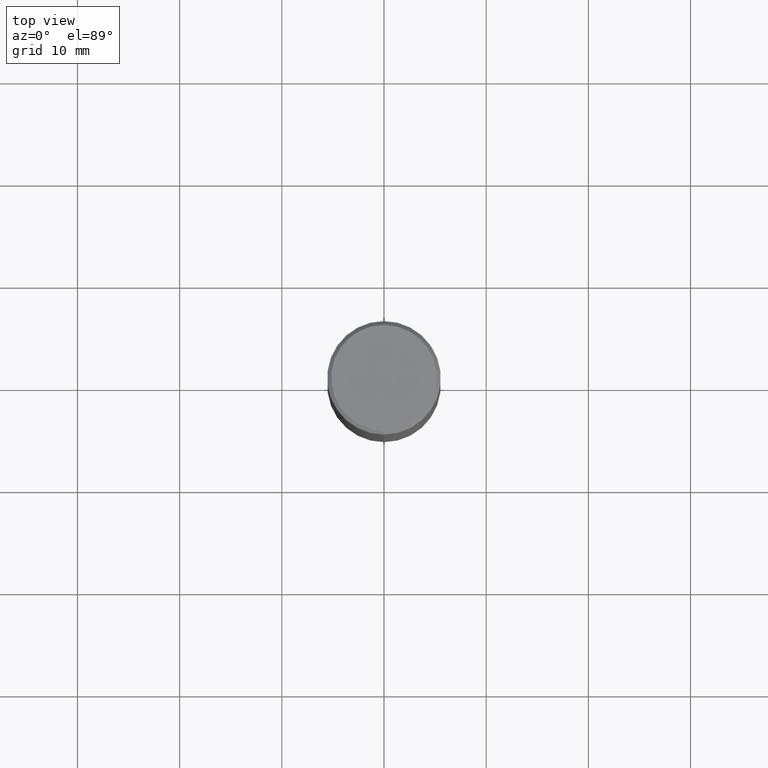
[diagram: clean part render]
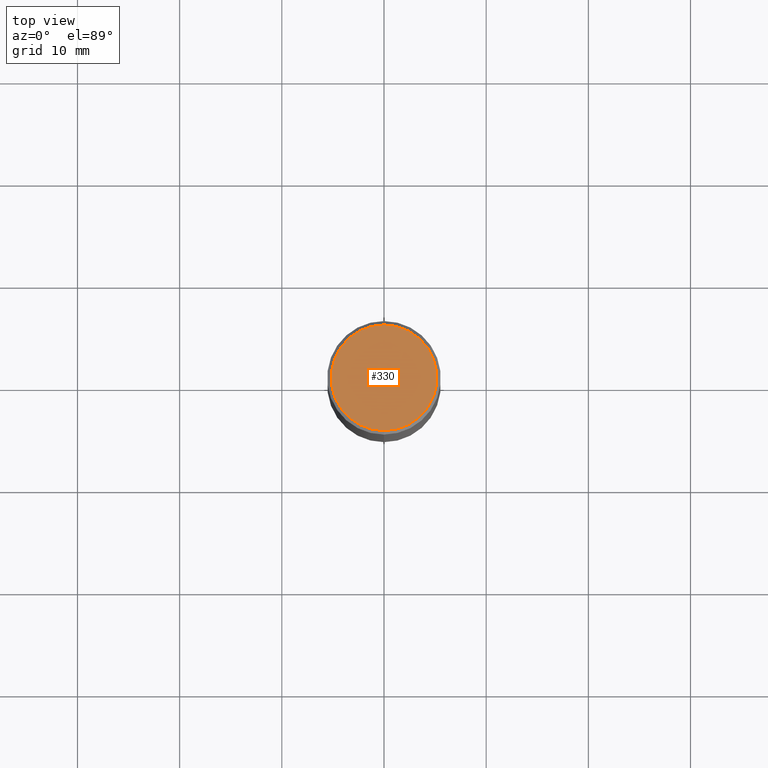
[diagram: same view with one face highlighted and labeled with its STEP entity id]
A machine part, top view. The second image highlights one B-rep face of the part: STEP entity #330.
In plain terms, the highlighted planar face has unit normal (0, -0, -1).
Its self-contained STEP definition (entity closure, byte-faithful):
#24 = DIRECTION ( 'NONE',  ( -6.982962677686265133E-15, -1.000000000000000000, 3.491839334104495039E-15 ) ) ;
#33 = VERTEX_POINT ( 'NONE', #425 ) ;
#70 = ORIENTED_EDGE ( 'NONE', *, *, #274, .T. ) ;
#77 = EDGE_LOOP ( 'NONE', ( #70, #170 ) ) ;
#90 = CARTESIAN_POINT ( 'NONE',  ( 1.475150865661223764E-15, 0.2037499999999999867, -7.474527806162975225E-16 ) ) ;
#94 = CIRCLE ( 'NONE', #261, 0.2037499999999999867 ) ;
#145 = FACE_OUTER_BOUND ( 'NONE', #77, .T. ) ;
#170 = ORIENTED_EDGE ( 'NONE', *, *, #195, .T. ) ;
#174 = DIRECTION ( 'NONE',  ( -2.445218819430257669E-29, 3.491839334104495039E-15, 1.000000000000000000 ) ) ;
#182 = VERTEX_POINT ( 'NONE', #90 ) ;
#195 = EDGE_CURVE ( 'NONE', #33, #182, #412, .T. ) ;
#204 = AXIS2_PLACEMENT_3D ( 'NONE', #327, #240, #285 ) ;
#220 = DIRECTION ( 'NONE',  ( 6.982962677686265922E-15, 1.000000000000000000, -3.491839334104495039E-15 ) ) ;
#225 = PLANE ( 'NONE',  #422 ) ;
#240 = DIRECTION ( 'NONE',  ( -2.445218819430257669E-29, 3.491839334104495039E-15, 1.000000000000000000 ) ) ;
#261 = AXIS2_PLACEMENT_3D ( 'NONE', #370, #174, #24 ) ;
#274 = EDGE_CURVE ( 'NONE', #182, #33, #94, .T. ) ;
#285 = DIRECTION ( 'NONE',  ( -6.982962677686265133E-15, -1.000000000000000000, 3.491839334104495039E-15 ) ) ;
#327 = CARTESIAN_POINT ( 'NONE',  ( 8.800468775944873433E-46, -1.256731004449036415E-31, -3.599051629250672199E-17 ) ) ;
#330 = ADVANCED_FACE ( 'NONE', ( #145 ), #225, .F. ) ;
#335 = DIRECTION ( 'NONE',  ( 2.445218819430257109E-29, -3.491839334104495039E-15, -1.000000000000000000 ) ) ;
#370 = CARTESIAN_POINT ( 'NONE',  ( 8.800468775944873433E-46, -1.256731004449036415E-31, -3.599051629250672199E-17 ) ) ;
#374 = CARTESIAN_POINT ( 'NONE',  ( 1.422778645578576487E-15, 0.2037499999999999867, -7.294575224700439705E-16 ) ) ;
#412 = CIRCLE ( 'NONE', #204, 0.2037499999999999867 ) ;
#422 = AXIS2_PLACEMENT_3D ( 'NONE', #374, #335, #220 ) ;
#425 = CARTESIAN_POINT ( 'NONE',  ( -1.449280202029235538E-15, -0.2037499999999999867, 6.754717480312840046E-16 ) ) ;